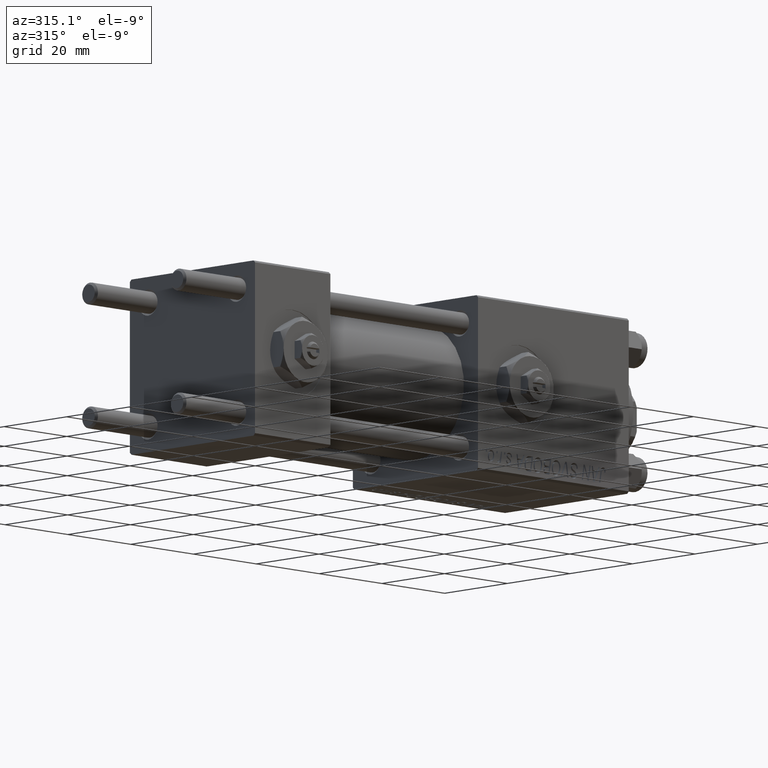
[diagram: clean part render]
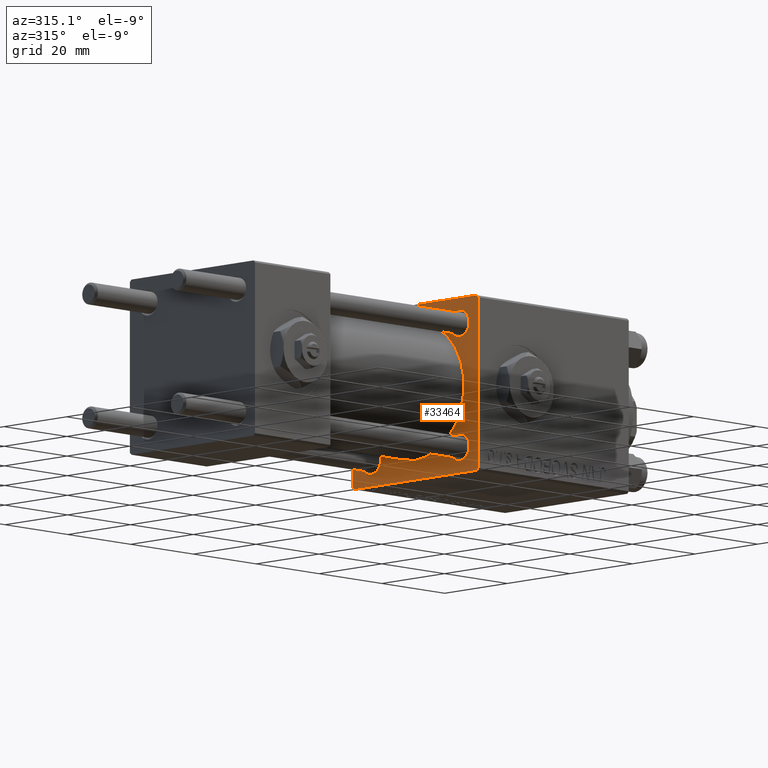
[diagram: same view with one face highlighted and labeled with its STEP entity id]
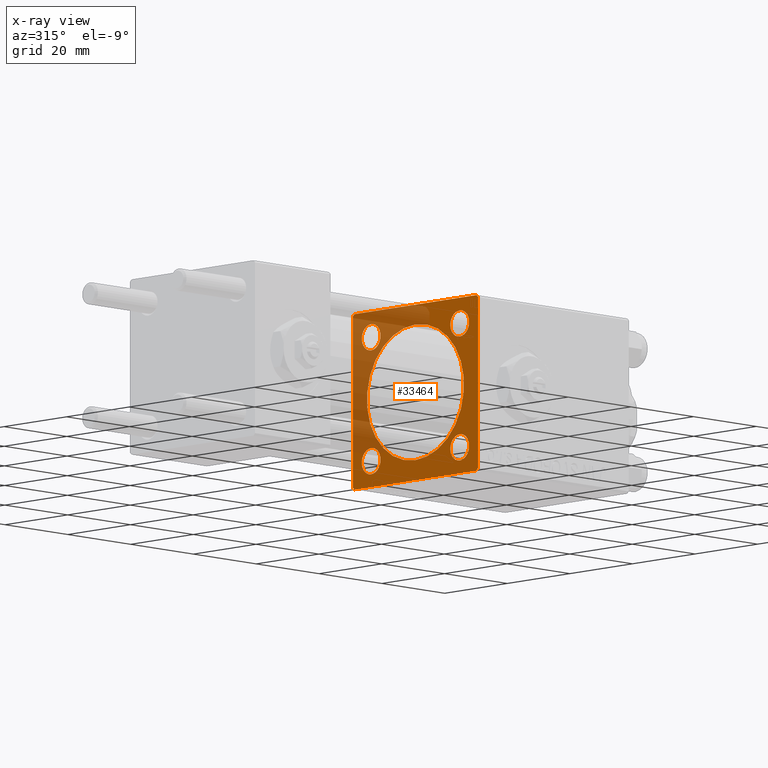
[diagram: x-ray of the same camera — body ghosted, the highlighted face saturated]
A machine part, auxiliary view. The second image highlights one B-rep face of the part: STEP entity #33464.
The next image is the same camera in x-ray: the body ghosted, the highlighted face saturated — about 37% of this face is hidden behind the body in this view.
In plain terms, the highlighted planar face has unit normal (-1, 0, 0).
Its self-contained STEP definition (entity closure, byte-faithful):
#371 = EDGE_CURVE ( 'NONE', #768, #37935, #37311, .T. ) ;
#712 = CARTESIAN_POINT ( 'NONE',  ( 71.00000000000001421, 19.49999999999996803, 20.00000000000000000 ) ) ;
#768 = VERTEX_POINT ( 'NONE', #10208 ) ;
#1212 = PLANE ( 'NONE',  #41739 ) ;
#1527 = ORIENTED_EDGE ( 'NONE', *, *, #371, .T. ) ;
#1819 = CARTESIAN_POINT ( 'NONE',  ( 71.00000000000001421, 19.99999999999999645, 19.49999999999998579 ) ) ;
#1896 = CARTESIAN_POINT ( 'NONE',  ( 71.00000000000001421, 19.99999999999999645, 20.00000000000000000 ) ) ;
#2007 = CARTESIAN_POINT ( 'NONE',  ( 71.00000000000001421, 0.000000000000000000, 15.50000000000000000 ) ) ;
#2629 = CARTESIAN_POINT ( 'NONE',  ( 71.00000000000001421, 19.99999999999999645, -20.00000000000000000 ) ) ;
#2669 = VECTOR ( 'NONE', #24957, 999.9999999999998863 ) ;
#3429 = CIRCLE ( 'NONE', #30215, 2.999999999999976463 ) ;
#3885 = EDGE_CURVE ( 'NONE', #47494, #9365, #8193, .T. ) ;
#4788 = DIRECTION ( 'NONE',  ( 0.000000000000000000, 0.000000000000000000, 1.000000000000000000 ) ) ;
#5606 = AXIS2_PLACEMENT_3D ( 'NONE', #12543, #44815, #36191 ) ;
#6048 = LINE ( 'NONE', #25219, #2669 ) ;
#6089 = CARTESIAN_POINT ( 'NONE',  ( 71.00000000000001421, 1.898202538678397557E-15, -15.50000000000000000 ) ) ;
#6882 = CARTESIAN_POINT ( 'NONE',  ( 71.00000000000001421, 14.15000000000000036, -17.14999999999997726 ) ) ;
#8111 = ORIENTED_EDGE ( 'NONE', *, *, #26667, .T. ) ;
#8193 = LINE ( 'NONE', #27900, #20648 ) ;
#8273 = VERTEX_POINT ( 'NONE', #1819 ) ;
#9279 = VERTEX_POINT ( 'NONE', #46241 ) ;
#9345 = FACE_BOUND ( 'NONE', #39726, .T. ) ;
#9365 = VERTEX_POINT ( 'NONE', #33352 ) ;
#9440 = DIRECTION ( 'NONE',  ( 0.000000000000000000, 0.000000000000000000, 1.000000000000000000 ) ) ;
#9544 = DIRECTION ( 'NONE',  ( 0.000000000000000000, 0.000000000000000000, -1.000000000000000000 ) ) ;
#9741 = DIRECTION ( 'NONE',  ( 0.000000000000000000, 0.000000000000000000, -1.000000000000000000 ) ) ;
#9967 = CARTESIAN_POINT ( 'NONE',  ( 71.00000000000001421, -14.15000000000000036, 14.15000000000000036 ) ) ;
#10017 = CARTESIAN_POINT ( 'NONE',  ( 71.00000000000001421, 14.15000000000000036, 17.15000000000000568 ) ) ;
#10208 = CARTESIAN_POINT ( 'NONE',  ( 71.00000000000001421, -14.15000000000000036, 11.14999999999999858 ) ) ;
#11211 = AXIS2_PLACEMENT_3D ( 'NONE', #18060, #30174, #9440 ) ;
#11435 = DIRECTION ( 'NONE',  ( -0.000000000000000000, -0.7071067811865474617, -0.7071067811865474617 ) ) ;
#12050 = DIRECTION ( 'NONE',  ( 0.000000000000000000, -0.7071067811865376918, 0.7071067811865574537 ) ) ;
#12317 = AXIS2_PLACEMENT_3D ( 'NONE', #29134, #36762, #45396 ) ;
#12459 = ORIENTED_EDGE ( 'NONE', *, *, #18551, .T. ) ;
#12543 = CARTESIAN_POINT ( 'NONE',  ( 71.00000000000001421, -14.15000000000000036, -14.15000000000000036 ) ) ;
#12599 = ORIENTED_EDGE ( 'NONE', *, *, #42554, .T. ) ;
#12787 = AXIS2_PLACEMENT_3D ( 'NONE', #9967, #13895, #22034 ) ;
#12909 = CIRCLE ( 'NONE', #37205, 15.50000000000000000 ) ;
#13028 = FACE_BOUND ( 'NONE', #25778, .T. ) ;
#13681 = DIRECTION ( 'NONE',  ( 1.000000000000000000, 0.000000000000000000, 0.000000000000000000 ) ) ;
#13895 = DIRECTION ( 'NONE',  ( 1.000000000000000000, 0.000000000000000000, 0.000000000000000000 ) ) ;
#14117 = DIRECTION ( 'NONE',  ( 1.000000000000000000, 0.000000000000000000, 0.000000000000000000 ) ) ;
#14893 = DIRECTION ( 'NONE',  ( 0.000000000000000000, 0.000000000000000000, 1.000000000000000000 ) ) ;
#15165 = AXIS2_PLACEMENT_3D ( 'NONE', #38548, #14117, #14893 ) ;
#15520 = EDGE_LOOP ( 'NONE', ( #35402, #29151, #28563, #39859, #18728, #39386, #30914, #12599 ) ) ;
#16165 = VERTEX_POINT ( 'NONE', #49352 ) ;
#16816 = VERTEX_POINT ( 'NONE', #47105 ) ;
#16851 = CIRCLE ( 'NONE', #39533, 2.999999999999976463 ) ;
#16891 = LINE ( 'NONE', #21355, #29665 ) ;
#16994 = VECTOR ( 'NONE', #19656, 1000.000000000000000 ) ;
#17352 = DIRECTION ( 'NONE',  ( 1.000000000000000000, 0.000000000000000000, 0.000000000000000000 ) ) ;
#17878 = DIRECTION ( 'NONE',  ( 0.000000000000000000, -1.000000000000000000, -8.673617379884035472E-17 ) ) ;
#18060 = CARTESIAN_POINT ( 'NONE',  ( 71.00000000000001421, 14.15000000000000036, 14.15000000000000036 ) ) ;
#18551 = EDGE_CURVE ( 'NONE', #33158, #23357, #43707, .T. ) ;
#18582 = CARTESIAN_POINT ( 'NONE',  ( 71.00000000000001421, 19.49999999999999645, -20.00000000000000000 ) ) ;
#18696 = DIRECTION ( 'NONE',  ( 1.000000000000000000, 0.000000000000000000, 0.000000000000000000 ) ) ;
#18728 = ORIENTED_EDGE ( 'NONE', *, *, #40233, .F. ) ;
#18814 = VERTEX_POINT ( 'NONE', #712 ) ;
#19656 = DIRECTION ( 'NONE',  ( 0.000000000000000000, -1.000000000000000000, 0.000000000000000000 ) ) ;
#19906 = VERTEX_POINT ( 'NONE', #37791 ) ;
#19999 = EDGE_LOOP ( 'NONE', ( #40317, #8111 ) ) ;
#20633 = FACE_BOUND ( 'NONE', #19999, .T. ) ;
#20648 = VECTOR ( 'NONE', #40491, 1000.000000000000114 ) ;
#21023 = LINE ( 'NONE', #40738, #21206 ) ;
#21156 = FACE_BOUND ( 'NONE', #45209, .T. ) ;
#21206 = VECTOR ( 'NONE', #48081, 1000.000000000000000 ) ;
#21355 = CARTESIAN_POINT ( 'NONE',  ( 71.00000000000001421, 19.99999999999999645, 20.00000000000000000 ) ) ;
#21515 = CIRCLE ( 'NONE', #5606, 2.999999999999976463 ) ;
#21674 = ORIENTED_EDGE ( 'NONE', *, *, #47783, .T. ) ;
#22034 = DIRECTION ( 'NONE',  ( 0.000000000000000000, 0.000000000000000000, 1.000000000000000000 ) ) ;
#22699 = VERTEX_POINT ( 'NONE', #2007 ) ;
#23357 = VERTEX_POINT ( 'NONE', #46736 ) ;
#23439 = DIRECTION ( 'NONE',  ( 0.000000000000000000, 0.000000000000000000, 1.000000000000000000 ) ) ;
#24438 = CARTESIAN_POINT ( 'NONE',  ( 71.00000000000001421, -20.00000000000000355, 19.50000000000002487 ) ) ;
#24957 = DIRECTION ( 'NONE',  ( 0.000000000000000000, 0.7071067811865574537, -0.7071067811865376918 ) ) ;
#25147 = EDGE_CURVE ( 'NONE', #8273, #16816, #16891, .T. ) ;
#25219 = CARTESIAN_POINT ( 'NONE',  ( 71.00000000000001421, 19.74999999999971578, 19.75000000000026290 ) ) ;
#25358 = DIRECTION ( 'NONE',  ( -0.000000000000000000, 0.000000000000000000, 1.000000000000000000 ) ) ;
#25555 = EDGE_CURVE ( 'NONE', #22699, #39532, #12909, .T. ) ;
#25778 = EDGE_LOOP ( 'NONE', ( #32015, #12459 ) ) ;
#26143 = ORIENTED_EDGE ( 'NONE', *, *, #32072, .T. ) ;
#26171 = ORIENTED_EDGE ( 'NONE', *, *, #27015, .T. ) ;
#26420 = AXIS2_PLACEMENT_3D ( 'NONE', #48112, #44435, #23439 ) ;
#26424 = ORIENTED_EDGE ( 'NONE', *, *, #50164, .T. ) ;
#26455 = VERTEX_POINT ( 'NONE', #44685 ) ;
#26667 = EDGE_CURVE ( 'NONE', #39532, #22699, #35791, .T. ) ;
#26755 = VERTEX_POINT ( 'NONE', #18582 ) ;
#27015 = EDGE_CURVE ( 'NONE', #16165, #27768, #21515, .T. ) ;
#27768 = VERTEX_POINT ( 'NONE', #31616 ) ;
#27900 = CARTESIAN_POINT ( 'NONE',  ( 71.00000000000001421, -19.74999999999973710, 19.75000000000028422 ) ) ;
#28065 = LINE ( 'NONE', #44072, #48723 ) ;
#28563 = ORIENTED_EDGE ( 'NONE', *, *, #49540, .F. ) ;
#29046 = FACE_OUTER_BOUND ( 'NONE', #15520, .T. ) ;
#29134 = CARTESIAN_POINT ( 'NONE',  ( 71.00000000000001421, 0.000000000000000000, 0.000000000000000000 ) ) ;
#29151 = ORIENTED_EDGE ( 'NONE', *, *, #40821, .T. ) ;
#29665 = VECTOR ( 'NONE', #9544, 1000.000000000000000 ) ;
#29764 = DIRECTION ( 'NONE',  ( 0.000000000000000000, 0.000000000000000000, 1.000000000000000000 ) ) ;
#30174 = DIRECTION ( 'NONE',  ( 1.000000000000000000, 0.000000000000000000, 0.000000000000000000 ) ) ;
#30215 = AXIS2_PLACEMENT_3D ( 'NONE', #37598, #17352, #4788 ) ;
#30341 = VECTOR ( 'NONE', #11435, 1000.000000000000114 ) ;
#30591 = CARTESIAN_POINT ( 'NONE',  ( 71.00000000000001421, 14.15000000000000036, 14.15000000000000036 ) ) ;
#30914 = ORIENTED_EDGE ( 'NONE', *, *, #25147, .T. ) ;
#31616 = CARTESIAN_POINT ( 'NONE',  ( 71.00000000000001421, -14.15000000000000036, -11.15000000000002522 ) ) ;
#32015 = ORIENTED_EDGE ( 'NONE', *, *, #41546, .T. ) ;
#32072 = EDGE_CURVE ( 'NONE', #36552, #19906, #40056, .T. ) ;
#32174 = CIRCLE ( 'NONE', #11211, 3.000000000000000888 ) ;
#33158 = VERTEX_POINT ( 'NONE', #6882 ) ;
#33352 = CARTESIAN_POINT ( 'NONE',  ( 71.00000000000001421, -19.50000000000001776, 19.99999999999999645 ) ) ;
#33464 = ADVANCED_FACE ( 'NONE', ( #21156, #37188, #13028, #9345, #20633, #29046 ), #1212, .T. ) ;
#35402 = ORIENTED_EDGE ( 'NONE', *, *, #49771, .T. ) ;
#35440 = CIRCLE ( 'NONE', #12787, 3.000000000000004441 ) ;
#35603 = LINE ( 'NONE', #47127, #30341 ) ;
#35791 = CIRCLE ( 'NONE', #12317, 15.50000000000000000 ) ;
#35876 = ORIENTED_EDGE ( 'NONE', *, *, #39379, .T. ) ;
#36191 = DIRECTION ( 'NONE',  ( 0.000000000000000000, 0.000000000000000000, 1.000000000000000000 ) ) ;
#36552 = VERTEX_POINT ( 'NONE', #10017 ) ;
#36762 = DIRECTION ( 'NONE',  ( 1.000000000000000000, 0.000000000000000000, 0.000000000000000000 ) ) ;
#37188 = FACE_BOUND ( 'NONE', #46727, .T. ) ;
#37205 = AXIS2_PLACEMENT_3D ( 'NONE', #49639, #13681, #9741 ) ;
#37311 = CIRCLE ( 'NONE', #26420, 3.000000000000004441 ) ;
#37479 = CARTESIAN_POINT ( 'NONE',  ( 71.00000000000001421, -14.15000000000000036, 17.15000000000000568 ) ) ;
#37598 = CARTESIAN_POINT ( 'NONE',  ( 71.00000000000001421, -14.15000000000000036, -14.15000000000000036 ) ) ;
#37791 = CARTESIAN_POINT ( 'NONE',  ( 71.00000000000001421, 14.15000000000000036, 11.14999999999999858 ) ) ;
#37935 = VERTEX_POINT ( 'NONE', #37479 ) ;
#38548 = CARTESIAN_POINT ( 'NONE',  ( 71.00000000000001421, 14.15000000000000036, -14.15000000000000036 ) ) ;
#39379 = EDGE_CURVE ( 'NONE', #27768, #16165, #3429, .T. ) ;
#39383 = LINE ( 'NONE', #2629, #16994 ) ;
#39386 = ORIENTED_EDGE ( 'NONE', *, *, #45816, .T. ) ;
#39532 = VERTEX_POINT ( 'NONE', #6089 ) ;
#39533 = AXIS2_PLACEMENT_3D ( 'NONE', #46789, #18696, #29764 ) ;
#39726 = EDGE_LOOP ( 'NONE', ( #35876, #26171 ) ) ;
#39859 = ORIENTED_EDGE ( 'NONE', *, *, #3885, .T. ) ;
#40056 = CIRCLE ( 'NONE', #50179, 3.000000000000000888 ) ;
#40233 = EDGE_CURVE ( 'NONE', #18814, #9365, #48891, .T. ) ;
#40317 = ORIENTED_EDGE ( 'NONE', *, *, #25555, .T. ) ;
#40491 = DIRECTION ( 'NONE',  ( -0.000000000000000000, 0.7071067811865573427, 0.7071067811865376918 ) ) ;
#40738 = CARTESIAN_POINT ( 'NONE',  ( 71.00000000000001421, -20.00000000000000355, 19.99999999999999645 ) ) ;
#40821 = EDGE_CURVE ( 'NONE', #9279, #26455, #28065, .T. ) ;
#41546 = EDGE_CURVE ( 'NONE', #23357, #33158, #16851, .T. ) ;
#41739 = AXIS2_PLACEMENT_3D ( 'NONE', #44789, #45040, #25358 ) ;
#42554 = EDGE_CURVE ( 'NONE', #16816, #26755, #35603, .T. ) ;
#43707 = CIRCLE ( 'NONE', #15165, 2.999999999999976463 ) ;
#44072 = CARTESIAN_POINT ( 'NONE',  ( 71.00000000000001421, -19.75000000000028066, -19.74999999999973355 ) ) ;
#44435 = DIRECTION ( 'NONE',  ( 1.000000000000000000, 0.000000000000000000, 0.000000000000000000 ) ) ;
#44685 = CARTESIAN_POINT ( 'NONE',  ( 71.00000000000001421, -20.00000000000000000, -19.50000000000001066 ) ) ;
#44789 = CARTESIAN_POINT ( 'NONE',  ( 71.00000000000001421, 0.000000000000000000, 0.000000000000000000 ) ) ;
#44815 = DIRECTION ( 'NONE',  ( 1.000000000000000000, 0.000000000000000000, 0.000000000000000000 ) ) ;
#45040 = DIRECTION ( 'NONE',  ( -1.000000000000000000, 0.000000000000000000, -0.000000000000000000 ) ) ;
#45209 = EDGE_LOOP ( 'NONE', ( #21674, #1527 ) ) ;
#45396 = DIRECTION ( 'NONE',  ( 0.000000000000000000, 0.000000000000000000, -1.000000000000000000 ) ) ;
#45557 = DIRECTION ( 'NONE',  ( 1.000000000000000000, 0.000000000000000000, 0.000000000000000000 ) ) ;
#45808 = DIRECTION ( 'NONE',  ( 0.000000000000000000, 0.000000000000000000, 1.000000000000000000 ) ) ;
#45816 = EDGE_CURVE ( 'NONE', #18814, #8273, #6048, .T. ) ;
#46241 = CARTESIAN_POINT ( 'NONE',  ( 71.00000000000001421, -19.50000000000002487, -20.00000000000000000 ) ) ;
#46727 = EDGE_LOOP ( 'NONE', ( #26143, #26424 ) ) ;
#46736 = CARTESIAN_POINT ( 'NONE',  ( 71.00000000000001421, 14.15000000000000036, -11.15000000000002522 ) ) ;
#46789 = CARTESIAN_POINT ( 'NONE',  ( 71.00000000000001421, 14.15000000000000036, -14.15000000000000036 ) ) ;
#47105 = CARTESIAN_POINT ( 'NONE',  ( 71.00000000000001421, 19.99999999999999645, -19.50000000000000000 ) ) ;
#47127 = CARTESIAN_POINT ( 'NONE',  ( 71.00000000000001421, 19.74999999999999645, -19.74999999999999645 ) ) ;
#47494 = VERTEX_POINT ( 'NONE', #24438 ) ;
#47783 = EDGE_CURVE ( 'NONE', #37935, #768, #35440, .T. ) ;
#47860 = VECTOR ( 'NONE', #17878, 1000.000000000000000 ) ;
#48081 = DIRECTION ( 'NONE',  ( 0.000000000000000000, 8.673617379884036705E-17, -1.000000000000000000 ) ) ;
#48112 = CARTESIAN_POINT ( 'NONE',  ( 71.00000000000001421, -14.15000000000000036, 14.15000000000000036 ) ) ;
#48723 = VECTOR ( 'NONE', #12050, 999.9999999999998863 ) ;
#48891 = LINE ( 'NONE', #1896, #47860 ) ;
#49352 = CARTESIAN_POINT ( 'NONE',  ( 71.00000000000001421, -14.15000000000000036, -17.14999999999997726 ) ) ;
#49540 = EDGE_CURVE ( 'NONE', #47494, #26455, #21023, .T. ) ;
#49639 = CARTESIAN_POINT ( 'NONE',  ( 71.00000000000001421, 0.000000000000000000, 0.000000000000000000 ) ) ;
#49771 = EDGE_CURVE ( 'NONE', #26755, #9279, #39383, .T. ) ;
#50164 = EDGE_CURVE ( 'NONE', #19906, #36552, #32174, .T. ) ;
#50179 = AXIS2_PLACEMENT_3D ( 'NONE', #30591, #45557, #45808 ) ;